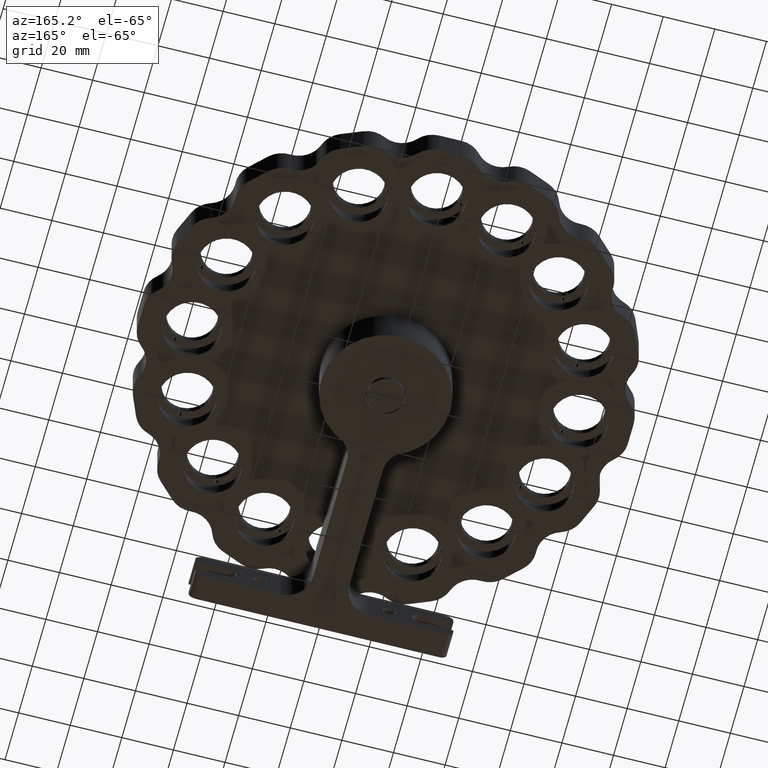
[diagram: clean part render]
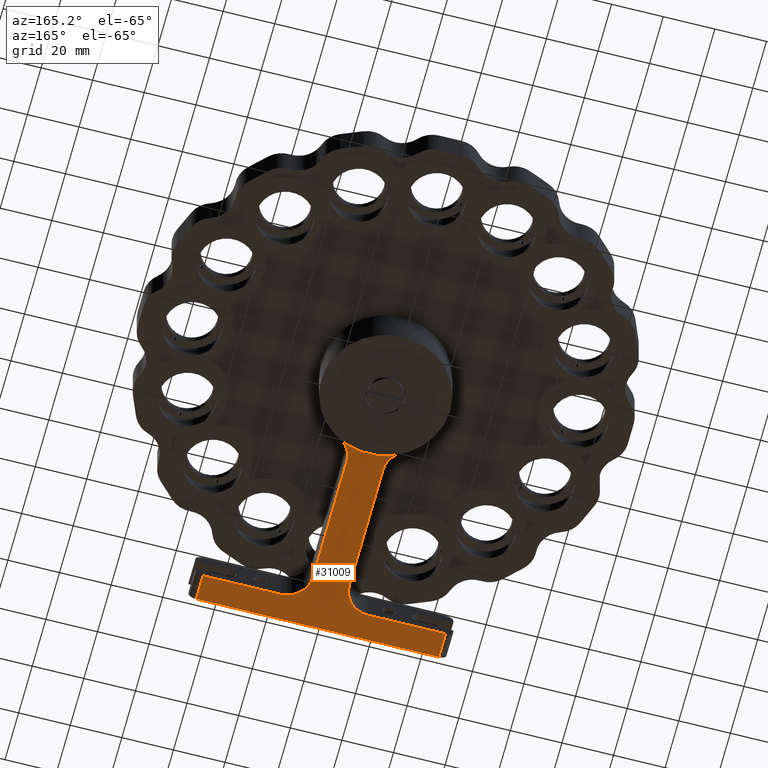
[diagram: same view with one face highlighted and labeled with its STEP entity id]
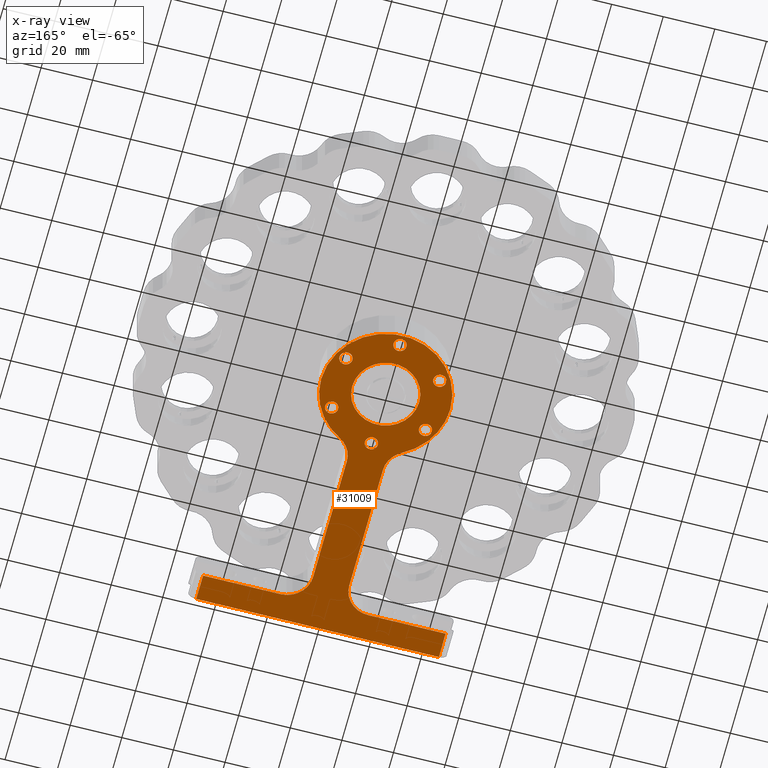
[diagram: x-ray of the same camera — body ghosted, the highlighted face saturated]
A machine part, auxiliary view. The second image highlights one B-rep face of the part: STEP entity #31009.
The next image is the same camera in x-ray: the body ghosted, the highlighted face saturated — about 0% of this face is hidden behind the body in this view.
In plain terms, the highlighted planar face has unit normal (-0, 0, 1).
Its self-contained STEP definition (entity closure, byte-faithful):
#388 = VERTEX_POINT ( 'NONE', #40735 ) ;
#490 = CIRCLE ( 'NONE', #30505, 2.499999999999996400 ) ;
#1052 = EDGE_LOOP ( 'NONE', ( #15436, #12387 ) ) ;
#1163 = DIRECTION ( 'NONE',  ( 1.000000000000000000, 0.0000000000000000000, 0.0000000000000000000 ) ) ;
#1570 = CARTESIAN_POINT ( 'NONE',  ( -25.00000000000001400, 2.442039979583282200E-014, -16.00000000000000000 ) ) ;
#1642 = DIRECTION ( 'NONE',  ( 1.000000000000000000, 0.0000000000000000000, 0.0000000000000000000 ) ) ;
#1867 = VERTEX_POINT ( 'NONE', #24422 ) ;
#2287 = EDGE_CURVE ( 'NONE', #43781, #21753, #27997, .T. ) ;
#2680 = AXIS2_PLACEMENT_3D ( 'NONE', #12068, #44208, #44034 ) ;
#2791 = CARTESIAN_POINT ( 'NONE',  ( -16.99999999999998600, -30.59411708155672100, -16.00000000000000000 ) ) ;
#2918 = AXIS2_PLACEMENT_3D ( 'NONE', #4571, #28815, #44686 ) ;
#3717 = ORIENTED_EDGE ( 'NONE', *, *, #17132, .T. ) ;
#4410 = CARTESIAN_POINT ( 'NONE',  ( 0.0000000000000000000, -99.99999999999997200, -16.00000000000000000 ) ) ;
#4571 = CARTESIAN_POINT ( 'NONE',  ( 0.0000000000000000000, 0.0000000000000000000, -16.00000000000000000 ) ) ;
#4617 = CARTESIAN_POINT ( 'NONE',  ( 18.18653347947309100, 10.50000000000021300, -16.00000000000000000 ) ) ;
#4674 = AXIS2_PLACEMENT_3D ( 'NONE', #39315, #46933, #23401 ) ;
#4795 = DIRECTION ( 'NONE',  ( 3.511167847845976500E-017, 1.000000000000000000, 0.0000000000000000000 ) ) ;
#4999 = CIRCLE ( 'NONE', #34518, 2.499999999999995100 ) ;
#5077 = CARTESIAN_POINT ( 'NONE',  ( 2.499999999999996400, -21.00000000000000000, -16.00000000000000000 ) ) ;
#5129 = DIRECTION ( 'NONE',  ( -0.0000000000000000000, -0.0000000000000000000, 1.000000000000000000 ) ) ;
#5370 = ORIENTED_EDGE ( 'NONE', *, *, #44611, .T. ) ;
#5464 = CARTESIAN_POINT ( 'NONE',  ( 12.14285714285716200, -21.85294077254051700, -16.00000000000000000 ) ) ;
#5474 = AXIS2_PLACEMENT_3D ( 'NONE', #24089, #19880, #23560 ) ;
#5578 = CARTESIAN_POINT ( 'NONE',  ( 47.00000000000001400, -99.99999999999997200, -16.00000000000000000 ) ) ;
#5644 = DIRECTION ( 'NONE',  ( 1.000000000000000000, 0.0000000000000000000, 0.0000000000000000000 ) ) ;
#5741 = CARTESIAN_POINT ( 'NONE',  ( 0.0000000000000000000, 21.00000000000000000, -16.00000000000000000 ) ) ;
#5824 = CARTESIAN_POINT ( 'NONE',  ( 17.00000000000001400, -30.59411708155672100, -16.00000000000000000 ) ) ;
#5944 = ORIENTED_EDGE ( 'NONE', *, *, #20808, .F. ) ;
#6404 = FACE_BOUND ( 'NONE', #38930, .T. ) ;
#6622 = EDGE_CURVE ( 'NONE', #19881, #28566, #44180, .T. ) ;
#6753 = EDGE_CURVE ( 'NONE', #26365, #41298, #23975, .T. ) ;
#6969 = DIRECTION ( 'NONE',  ( 1.000000000000000000, 0.0000000000000000000, 0.0000000000000000000 ) ) ;
#7209 = ORIENTED_EDGE ( 'NONE', *, *, #21417, .T. ) ;
#7810 = CIRCLE ( 'NONE', #38232, 25.00000000000002800 ) ;
#7985 = CARTESIAN_POINT ( 'NONE',  ( -46.99999999999998600, -89.99999999999997200, -16.00000000000000000 ) ) ;
#8396 = DIRECTION ( 'NONE',  ( 1.000000000000000000, 0.0000000000000000000, 0.0000000000000000000 ) ) ;
#8911 = LINE ( 'NONE', #17798, #17169 ) ;
#9030 = AXIS2_PLACEMENT_3D ( 'NONE', #19216, #51568, #6969 ) ;
#9102 = CARTESIAN_POINT ( 'NONE',  ( -18.18653347947316600, -10.50000000000008700, -16.00000000000000000 ) ) ;
#9155 = EDGE_CURVE ( 'NONE', #17553, #47434, #23064, .T. ) ;
#9204 = DIRECTION ( 'NONE',  ( 1.000000000000000000, 0.0000000000000000000, 0.0000000000000000000 ) ) ;
#9640 = DIRECTION ( 'NONE',  ( 1.000000000000000000, 0.0000000000000000000, 0.0000000000000000000 ) ) ;
#9757 = EDGE_LOOP ( 'NONE', ( #50331, #24512 ) ) ;
#9902 = DIRECTION ( 'NONE',  ( 1.000000000000000000, -1.734723475976806700E-015, 0.0000000000000000000 ) ) ;
#10414 = CARTESIAN_POINT ( 'NONE',  ( -20.68653347947316200, -10.50000000000008700, -16.00000000000000000 ) ) ;
#12068 = CARTESIAN_POINT ( 'NONE',  ( 0.0000000000000000000, -21.00000000000000000, -16.00000000000000000 ) ) ;
#12104 = CARTESIAN_POINT ( 'NONE',  ( 47.00000000000001400, -99.99999999999997200, -16.00000000000000000 ) ) ;
#12109 = EDGE_CURVE ( 'NONE', #34615, #14628, #23502, .T. ) ;
#12377 = DIRECTION ( 'NONE',  ( -0.0000000000000000000, -0.0000000000000000000, 1.000000000000000000 ) ) ;
#12387 = ORIENTED_EDGE ( 'NONE', *, *, #2287, .F. ) ;
#12571 = ORIENTED_EDGE ( 'NONE', *, *, #38916, .F. ) ;
#12602 = AXIS2_PLACEMENT_3D ( 'NONE', #22021, #25536, #14070 ) ;
#13163 = CARTESIAN_POINT ( 'NONE',  ( 17.00000000000001400, -79.99999999999998600, -16.00000000000000000 ) ) ;
#13365 = FACE_BOUND ( 'NONE', #1052, .T. ) ;
#13900 = LINE ( 'NONE', #21236, #44217 ) ;
#14035 = FACE_BOUND ( 'NONE', #9757, .T. ) ;
#14070 = DIRECTION ( 'NONE',  ( 1.000000000000000000, 0.0000000000000000000, 0.0000000000000000000 ) ) ;
#14193 = VECTOR ( 'NONE', #32702, 1000.000000000000000 ) ;
#14217 = ORIENTED_EDGE ( 'NONE', *, *, #20508, .T. ) ;
#14628 = VERTEX_POINT ( 'NONE', #42586 ) ;
#15436 = ORIENTED_EDGE ( 'NONE', *, *, #17109, .F. ) ;
#15478 = EDGE_CURVE ( 'NONE', #45630, #16946, #16979, .T. ) ;
#15511 = CARTESIAN_POINT ( 'NONE',  ( 13.00000000000000200, 1.592040838891559300E-015, -16.00000000000000000 ) ) ;
#15609 = CARTESIAN_POINT ( 'NONE',  ( -3.784851220313032100E-014, -89.99999999999995700, -16.00000000000000000 ) ) ;
#15686 = CIRCLE ( 'NONE', #12602, 25.00000000000002800 ) ;
#16693 = DIRECTION ( 'NONE',  ( -0.0000000000000000000, -0.0000000000000000000, 1.000000000000000000 ) ) ;
#16724 = VERTEX_POINT ( 'NONE', #5464 ) ;
#16946 = VERTEX_POINT ( 'NONE', #5578 ) ;
#16979 = LINE ( 'NONE', #12104, #47916 ) ;
#17109 = EDGE_CURVE ( 'NONE', #21753, #43781, #27570, .T. ) ;
#17132 = EDGE_CURVE ( 'NONE', #35782, #39917, #31390, .T. ) ;
#17169 = VECTOR ( 'NONE', #17629, 1000.000000000000000 ) ;
#17553 = VERTEX_POINT ( 'NONE', #37334 ) ;
#17602 = DIRECTION ( 'NONE',  ( -0.0000000000000000000, 0.0000000000000000000, 1.000000000000000000 ) ) ;
#17629 = DIRECTION ( 'NONE',  ( -3.511167847845976500E-017, 1.000000000000000000, 0.0000000000000000000 ) ) ;
#17798 = CARTESIAN_POINT ( 'NONE',  ( -6.999999999999987600, -2.457817493492179600E-016, -16.00000000000000000 ) ) ;
#17867 = AXIS2_PLACEMENT_3D ( 'NONE', #40296, #12377, #20013 ) ;
#18058 = LINE ( 'NONE', #15609, #30725 ) ;
#18338 = DIRECTION ( 'NONE',  ( -0.0000000000000000000, -0.0000000000000000000, 1.000000000000000000 ) ) ;
#18607 = EDGE_CURVE ( 'NONE', #32884, #32119, #47171, .T. ) ;
#19214 = AXIS2_PLACEMENT_3D ( 'NONE', #29878, #5129, #5644 ) ;
#19216 = CARTESIAN_POINT ( 'NONE',  ( 0.0000000000000000000, 0.0000000000000000000, -16.00000000000000000 ) ) ;
#19542 = DIRECTION ( 'NONE',  ( -0.0000000000000000000, -0.0000000000000000000, 1.000000000000000000 ) ) ;
#19721 = FACE_BOUND ( 'NONE', #42535, .T. ) ;
#19880 = DIRECTION ( 'NONE',  ( -0.0000000000000000000, 0.0000000000000000000, 1.000000000000000000 ) ) ;
#19881 = VERTEX_POINT ( 'NONE', #10414 ) ;
#20013 = DIRECTION ( 'NONE',  ( 1.000000000000000000, 0.0000000000000000000, 0.0000000000000000000 ) ) ;
#20087 = DIRECTION ( 'NONE',  ( 1.000000000000000000, 4.205390244792259800E-016, 0.0000000000000000000 ) ) ;
#20508 = EDGE_CURVE ( 'NONE', #35513, #31106, #37734, .T. ) ;
#20720 = ORIENTED_EDGE ( 'NONE', *, *, #35996, .T. ) ;
#20808 = EDGE_CURVE ( 'NONE', #45630, #31106, #18058, .T. ) ;
#21114 = CARTESIAN_POINT ( 'NONE',  ( -15.68653347947317100, -10.50000000000008700, -16.00000000000000000 ) ) ;
#21236 = CARTESIAN_POINT ( 'NONE',  ( 7.000000000000016000, -2.457817493492188900E-016, -16.00000000000000000 ) ) ;
#21369 = ORIENTED_EDGE ( 'NONE', *, *, #46435, .F. ) ;
#21417 = EDGE_CURVE ( 'NONE', #25725, #40664, #26839, .T. ) ;
#21435 = DIRECTION ( 'NONE',  ( 1.000000000000000000, 0.0000000000000000000, 0.0000000000000000000 ) ) ;
#21491 = DIRECTION ( 'NONE',  ( -0.0000000000000000000, -0.0000000000000000000, 1.000000000000000000 ) ) ;
#21753 = VERTEX_POINT ( 'NONE', #49902 ) ;
#21794 = EDGE_CURVE ( 'NONE', #16724, #41674, #7810, .T. ) ;
#22021 = CARTESIAN_POINT ( 'NONE',  ( 1.431146867680865900E-014, 2.135878279796443700E-014, -16.00000000000000000 ) ) ;
#22142 = EDGE_CURVE ( 'NONE', #35782, #16946, #47682, .T. ) ;
#22569 = EDGE_CURVE ( 'NONE', #35396, #388, #42554, .T. ) ;
#22666 = AXIS2_PLACEMENT_3D ( 'NONE', #4617, #16693, #9204 ) ;
#23064 = CIRCLE ( 'NONE', #17867, 2.499999999999996400 ) ;
#23134 = EDGE_LOOP ( 'NONE', ( #5944, #29703, #50755, #3717, #20720, #28005, #5370, #37452, #41880, #21369, #32931, #12571, #47245, #14217 ) ) ;
#23226 = CARTESIAN_POINT ( 'NONE',  ( 18.18653347947330800, -10.49999999999983300, -16.00000000000000000 ) ) ;
#23321 = CIRCLE ( 'NONE', #5474, 25.00000000000002800 ) ;
#23344 = EDGE_CURVE ( 'NONE', #33457, #1867, #34974, .T. ) ;
#23346 = DIRECTION ( 'NONE',  ( -0.0000000000000000000, -0.0000000000000000000, 1.000000000000000000 ) ) ;
#23401 = DIRECTION ( 'NONE',  ( -1.000000000000000000, 0.0000000000000000000, 0.0000000000000000000 ) ) ;
#23502 = CIRCLE ( 'NONE', #24747, 9.999999999999991100 ) ;
#23560 = DIRECTION ( 'NONE',  ( 1.000000000000000000, 0.0000000000000000000, 0.0000000000000000000 ) ) ;
#23704 = DIRECTION ( 'NONE',  ( -1.000000000000000000, 4.205390244792259800E-016, 0.0000000000000000000 ) ) ;
#23717 = AXIS2_PLACEMENT_3D ( 'NONE', #13163, #17602, #1642 ) ;
#23975 = CIRCLE ( 'NONE', #37765, 2.499999999999995100 ) ;
#24089 = CARTESIAN_POINT ( 'NONE',  ( 1.431146867680865900E-014, 2.135878279796443700E-014, -16.00000000000000000 ) ) ;
#24422 = CARTESIAN_POINT ( 'NONE',  ( -12.14285714285713300, -21.85294077254051700, -16.00000000000000000 ) ) ;
#24512 = ORIENTED_EDGE ( 'NONE', *, *, #9155, .T. ) ;
#24747 = AXIS2_PLACEMENT_3D ( 'NONE', #48712, #32638, #8396 ) ;
#25034 = VECTOR ( 'NONE', #35598, 1000.000000000000000 ) ;
#25222 = AXIS2_PLACEMENT_3D ( 'NONE', #5741, #37785, #9640 ) ;
#25536 = DIRECTION ( 'NONE',  ( -0.0000000000000000000, 0.0000000000000000000, 1.000000000000000000 ) ) ;
#25725 = VERTEX_POINT ( 'NONE', #47693 ) ;
#25763 = CIRCLE ( 'NONE', #25222, 2.499999999999996400 ) ;
#26282 = CARTESIAN_POINT ( 'NONE',  ( -6.999999999999987600, -30.59411708155672100, -16.00000000000000000 ) ) ;
#26365 = VERTEX_POINT ( 'NONE', #46268 ) ;
#26403 = VECTOR ( 'NONE', #20087, 1000.000000000000000 ) ;
#26621 = EDGE_LOOP ( 'NONE', ( #33260, #34498 ) ) ;
#26839 = CIRCLE ( 'NONE', #22666, 2.499999999999995100 ) ;
#27471 = CARTESIAN_POINT ( 'NONE',  ( 25.00000000000004300, 2.135878279796443700E-014, -16.00000000000000000 ) ) ;
#27570 = CIRCLE ( 'NONE', #4674, 13.00000000000000200 ) ;
#27899 = FACE_OUTER_BOUND ( 'NONE', #23134, .T. ) ;
#27997 = CIRCLE ( 'NONE', #2918, 13.00000000000000200 ) ;
#28005 = ORIENTED_EDGE ( 'NONE', *, *, #12109, .T. ) ;
#28566 = VERTEX_POINT ( 'NONE', #21114 ) ;
#28815 = DIRECTION ( 'NONE',  ( 0.0000000000000000000, 0.0000000000000000000, -1.000000000000000000 ) ) ;
#28924 = DIRECTION ( 'NONE',  ( -0.0000000000000000000, -0.0000000000000000000, 1.000000000000000000 ) ) ;
#29156 = EDGE_CURVE ( 'NONE', #40664, #25725, #40017, .T. ) ;
#29256 = CARTESIAN_POINT ( 'NONE',  ( 0.0000000000000000000, -21.00000000000000000, -16.00000000000000000 ) ) ;
#29570 = CARTESIAN_POINT ( 'NONE',  ( 1.431146867680865900E-014, 2.135878279796443700E-014, -16.00000000000000000 ) ) ;
#29624 = AXIS2_PLACEMENT_3D ( 'NONE', #9102, #21491, #1163 ) ;
#29703 = ORIENTED_EDGE ( 'NONE', *, *, #15478, .T. ) ;
#29878 = CARTESIAN_POINT ( 'NONE',  ( 18.18653347947309100, 10.50000000000021300, -16.00000000000000000 ) ) ;
#30505 = AXIS2_PLACEMENT_3D ( 'NONE', #29256, #28924, #41621 ) ;
#30725 = VECTOR ( 'NONE', #23704, 1000.000000000000000 ) ;
#30864 = CARTESIAN_POINT ( 'NONE',  ( -46.99999999999998600, 0.0000000000000000000, -16.00000000000000000 ) ) ;
#31009 = ADVANCED_FACE ( 'NONE', ( #42451, #19721, #6404, #48152, #46260, #14035, #13365, #27899 ), #46943, .F. ) ;
#31106 = VERTEX_POINT ( 'NONE', #31218 ) ;
#31218 = CARTESIAN_POINT ( 'NONE',  ( 17.00000000000001400, -89.99999999999997200, -16.00000000000000000 ) ) ;
#31317 = EDGE_LOOP ( 'NONE', ( #33884, #51719 ) ) ;
#31390 = LINE ( 'NONE', #30864, #25034 ) ;
#32119 = VERTEX_POINT ( 'NONE', #36750 ) ;
#32425 = CARTESIAN_POINT ( 'NONE',  ( 3.784851220313032100E-014, -89.99999999999995700, -16.00000000000000000 ) ) ;
#32525 = EDGE_CURVE ( 'NONE', #35513, #43181, #13900, .T. ) ;
#32638 = DIRECTION ( 'NONE',  ( -0.0000000000000000000, 0.0000000000000000000, 1.000000000000000000 ) ) ;
#32675 = CARTESIAN_POINT ( 'NONE',  ( 18.18653347947330800, -10.49999999999983300, -16.00000000000000000 ) ) ;
#32702 = DIRECTION ( 'NONE',  ( 1.000000000000000000, 0.0000000000000000000, 0.0000000000000000000 ) ) ;
#32726 = DIRECTION ( 'NONE',  ( 1.000000000000000000, 0.0000000000000000000, 0.0000000000000000000 ) ) ;
#32736 = EDGE_CURVE ( 'NONE', #388, #35396, #4999, .T. ) ;
#32884 = VERTEX_POINT ( 'NONE', #5077 ) ;
#32931 = ORIENTED_EDGE ( 'NONE', *, *, #21794, .F. ) ;
#33145 = CIRCLE ( 'NONE', #33364, 10.00000000000000200 ) ;
#33260 = ORIENTED_EDGE ( 'NONE', *, *, #6753, .T. ) ;
#33364 = AXIS2_PLACEMENT_3D ( 'NONE', #5824, #37868, #9902 ) ;
#33457 = VERTEX_POINT ( 'NONE', #26282 ) ;
#33753 = EDGE_CURVE ( 'NONE', #32119, #32884, #490, .T. ) ;
#33884 = ORIENTED_EDGE ( 'NONE', *, *, #45735, .T. ) ;
#34498 = ORIENTED_EDGE ( 'NONE', *, *, #48205, .T. ) ;
#34518 = AXIS2_PLACEMENT_3D ( 'NONE', #32675, #44663, #48395 ) ;
#34615 = VERTEX_POINT ( 'NONE', #49580 ) ;
#34718 = CIRCLE ( 'NONE', #50971, 2.499999999999995100 ) ;
#34974 = CIRCLE ( 'NONE', #45004, 10.00000000000000000 ) ;
#35152 = DIRECTION ( 'NONE',  ( -0.0000000000000000000, 0.0000000000000000000, 1.000000000000000000 ) ) ;
#35380 = VERTEX_POINT ( 'NONE', #1570 ) ;
#35389 = EDGE_LOOP ( 'NONE', ( #43122, #7209 ) ) ;
#35396 = VERTEX_POINT ( 'NONE', #46269 ) ;
#35471 = CARTESIAN_POINT ( 'NONE',  ( -18.18653347947316600, -10.50000000000008700, -16.00000000000000000 ) ) ;
#35495 = ORIENTED_EDGE ( 'NONE', *, *, #22569, .T. ) ;
#35513 = VERTEX_POINT ( 'NONE', #40419 ) ;
#35598 = DIRECTION ( 'NONE',  ( 0.0000000000000000000, 1.000000000000000000, -0.0000000000000000000 ) ) ;
#35744 = EDGE_CURVE ( 'NONE', #35380, #1867, #15686, .T. ) ;
#35782 = VERTEX_POINT ( 'NONE', #46378 ) ;
#35996 = EDGE_CURVE ( 'NONE', #39917, #34615, #37204, .T. ) ;
#36101 = CARTESIAN_POINT ( 'NONE',  ( 7.000000000000015100, -30.59411708155672100, -16.00000000000000000 ) ) ;
#36153 = ORIENTED_EDGE ( 'NONE', *, *, #33753, .T. ) ;
#36750 = CARTESIAN_POINT ( 'NONE',  ( -2.499999999999996400, -21.00000000000000000, -16.00000000000000000 ) ) ;
#37204 = LINE ( 'NONE', #32425, #26403 ) ;
#37334 = CARTESIAN_POINT ( 'NONE',  ( -2.499999999999996400, 21.00000000000000000, -16.00000000000000000 ) ) ;
#37452 = ORIENTED_EDGE ( 'NONE', *, *, #23344, .T. ) ;
#37734 = CIRCLE ( 'NONE', #23717, 9.999999999999991100 ) ;
#37765 = AXIS2_PLACEMENT_3D ( 'NONE', #43013, #18338, #38104 ) ;
#37785 = DIRECTION ( 'NONE',  ( -0.0000000000000000000, -0.0000000000000000000, 1.000000000000000000 ) ) ;
#37868 = DIRECTION ( 'NONE',  ( 0.0000000000000000000, -0.0000000000000000000, -1.000000000000000000 ) ) ;
#38104 = DIRECTION ( 'NONE',  ( 1.000000000000000000, 0.0000000000000000000, 0.0000000000000000000 ) ) ;
#38232 = AXIS2_PLACEMENT_3D ( 'NONE', #29570, #45619, #21435 ) ;
#38916 = EDGE_CURVE ( 'NONE', #43181, #16724, #33145, .T. ) ;
#38930 = EDGE_LOOP ( 'NONE', ( #44011, #36153 ) ) ;
#39204 = DIRECTION ( 'NONE',  ( 1.000000000000000000, 0.0000000000000000000, 0.0000000000000000000 ) ) ;
#39315 = CARTESIAN_POINT ( 'NONE',  ( 0.0000000000000000000, 0.0000000000000000000, -16.00000000000000000 ) ) ;
#39617 = AXIS2_PLACEMENT_3D ( 'NONE', #23226, #19542, #43683 ) ;
#39917 = VERTEX_POINT ( 'NONE', #7985 ) ;
#40017 = CIRCLE ( 'NONE', #19214, 2.499999999999995100 ) ;
#40296 = CARTESIAN_POINT ( 'NONE',  ( 0.0000000000000000000, 21.00000000000000000, -16.00000000000000000 ) ) ;
#40419 = CARTESIAN_POINT ( 'NONE',  ( 7.000000000000013300, -79.99999999999998600, -16.00000000000000000 ) ) ;
#40664 = VERTEX_POINT ( 'NONE', #41060 ) ;
#40735 = CARTESIAN_POINT ( 'NONE',  ( 15.68653347947331500, -10.49999999999983300, -16.00000000000000000 ) ) ;
#41060 = CARTESIAN_POINT ( 'NONE',  ( 20.68653347947308800, 10.50000000000021300, -16.00000000000000000 ) ) ;
#41298 = VERTEX_POINT ( 'NONE', #51253 ) ;
#41621 = DIRECTION ( 'NONE',  ( 1.000000000000000000, 0.0000000000000000000, 0.0000000000000000000 ) ) ;
#41674 = VERTEX_POINT ( 'NONE', #27471 ) ;
#41780 = DIRECTION ( 'NONE',  ( 1.000000000000000000, 0.0000000000000000000, 0.0000000000000000000 ) ) ;
#41880 = ORIENTED_EDGE ( 'NONE', *, *, #35744, .F. ) ;
#42451 = FACE_BOUND ( 'NONE', #35389, .T. ) ;
#42535 = EDGE_LOOP ( 'NONE', ( #35495, #44777 ) ) ;
#42554 = CIRCLE ( 'NONE', #39617, 2.499999999999995100 ) ;
#42586 = CARTESIAN_POINT ( 'NONE',  ( -6.999999999999985800, -79.99999999999998600, -16.00000000000000000 ) ) ;
#42984 = CIRCLE ( 'NONE', #50169, 2.499999999999995100 ) ;
#43013 = CARTESIAN_POINT ( 'NONE',  ( -18.18653347947323700, 10.49999999999995900, -16.00000000000000000 ) ) ;
#43122 = ORIENTED_EDGE ( 'NONE', *, *, #29156, .T. ) ;
#43181 = VERTEX_POINT ( 'NONE', #36101 ) ;
#43683 = DIRECTION ( 'NONE',  ( 1.000000000000000000, 0.0000000000000000000, 0.0000000000000000000 ) ) ;
#43781 = VERTEX_POINT ( 'NONE', #15511 ) ;
#44011 = ORIENTED_EDGE ( 'NONE', *, *, #18607, .T. ) ;
#44034 = DIRECTION ( 'NONE',  ( 1.000000000000000000, 0.0000000000000000000, 0.0000000000000000000 ) ) ;
#44180 = CIRCLE ( 'NONE', #29624, 2.499999999999995100 ) ;
#44208 = DIRECTION ( 'NONE',  ( -0.0000000000000000000, -0.0000000000000000000, 1.000000000000000000 ) ) ;
#44217 = VECTOR ( 'NONE', #4795, 1000.000000000000000 ) ;
#44528 = CARTESIAN_POINT ( 'NONE',  ( -18.18653347947323700, 10.49999999999995900, -16.00000000000000000 ) ) ;
#44604 = DIRECTION ( 'NONE',  ( -0.0000000000000000000, -1.000000000000000000, 0.0000000000000000000 ) ) ;
#44611 = EDGE_CURVE ( 'NONE', #14628, #33457, #8911, .T. ) ;
#44663 = DIRECTION ( 'NONE',  ( -0.0000000000000000000, -0.0000000000000000000, 1.000000000000000000 ) ) ;
#44686 = DIRECTION ( 'NONE',  ( -1.000000000000000000, 0.0000000000000000000, 0.0000000000000000000 ) ) ;
#44777 = ORIENTED_EDGE ( 'NONE', *, *, #32736, .T. ) ;
#44798 = DIRECTION ( 'NONE',  ( -0.0000000000000000000, -0.0000000000000000000, 1.000000000000000000 ) ) ;
#45004 = AXIS2_PLACEMENT_3D ( 'NONE', #2791, #35152, #39204 ) ;
#45619 = DIRECTION ( 'NONE',  ( -0.0000000000000000000, 0.0000000000000000000, 1.000000000000000000 ) ) ;
#45630 = VERTEX_POINT ( 'NONE', #49999 ) ;
#45735 = EDGE_CURVE ( 'NONE', #28566, #19881, #42984, .T. ) ;
#46260 = FACE_BOUND ( 'NONE', #26621, .T. ) ;
#46268 = CARTESIAN_POINT ( 'NONE',  ( -15.68653347947324100, 10.49999999999995900, -16.00000000000000000 ) ) ;
#46269 = CARTESIAN_POINT ( 'NONE',  ( 20.68653347947330400, -10.49999999999983300, -16.00000000000000000 ) ) ;
#46378 = CARTESIAN_POINT ( 'NONE',  ( -46.99999999999998600, -99.99999999999997200, -16.00000000000000000 ) ) ;
#46435 = EDGE_CURVE ( 'NONE', #41674, #35380, #23321, .T. ) ;
#46933 = DIRECTION ( 'NONE',  ( 0.0000000000000000000, 0.0000000000000000000, -1.000000000000000000 ) ) ;
#46943 = PLANE ( 'NONE',  #9030 ) ;
#47171 = CIRCLE ( 'NONE', #2680, 2.499999999999996400 ) ;
#47245 = ORIENTED_EDGE ( 'NONE', *, *, #32525, .F. ) ;
#47434 = VERTEX_POINT ( 'NONE', #51250 ) ;
#47682 = LINE ( 'NONE', #4410, #14193 ) ;
#47693 = CARTESIAN_POINT ( 'NONE',  ( 15.68653347947309500, 10.50000000000021300, -16.00000000000000000 ) ) ;
#47916 = VECTOR ( 'NONE', #44604, 1000.000000000000000 ) ;
#48152 = FACE_BOUND ( 'NONE', #31317, .T. ) ;
#48205 = EDGE_CURVE ( 'NONE', #41298, #26365, #34718, .T. ) ;
#48395 = DIRECTION ( 'NONE',  ( 1.000000000000000000, 0.0000000000000000000, 0.0000000000000000000 ) ) ;
#48712 = CARTESIAN_POINT ( 'NONE',  ( -16.99999999999998600, -79.99999999999998600, -16.00000000000000000 ) ) ;
#48819 = EDGE_CURVE ( 'NONE', #47434, #17553, #25763, .T. ) ;
#49580 = CARTESIAN_POINT ( 'NONE',  ( -16.99999999999998600, -89.99999999999997200, -16.00000000000000000 ) ) ;
#49902 = CARTESIAN_POINT ( 'NONE',  ( -13.00000000000000200, 0.0000000000000000000, -16.00000000000000000 ) ) ;
#49999 = CARTESIAN_POINT ( 'NONE',  ( 47.00000000000001400, -89.99999999999997200, -16.00000000000000000 ) ) ;
#50169 = AXIS2_PLACEMENT_3D ( 'NONE', #35471, #44798, #41780 ) ;
#50331 = ORIENTED_EDGE ( 'NONE', *, *, #48819, .T. ) ;
#50755 = ORIENTED_EDGE ( 'NONE', *, *, #22142, .F. ) ;
#50971 = AXIS2_PLACEMENT_3D ( 'NONE', #44528, #23346, #32726 ) ;
#51250 = CARTESIAN_POINT ( 'NONE',  ( 2.499999999999996400, 21.00000000000000000, -16.00000000000000000 ) ) ;
#51253 = CARTESIAN_POINT ( 'NONE',  ( -20.68653347947323300, 10.49999999999995900, -16.00000000000000000 ) ) ;
#51568 = DIRECTION ( 'NONE',  ( -0.0000000000000000000, 0.0000000000000000000, 1.000000000000000000 ) ) ;
#51719 = ORIENTED_EDGE ( 'NONE', *, *, #6622, .T. ) ;